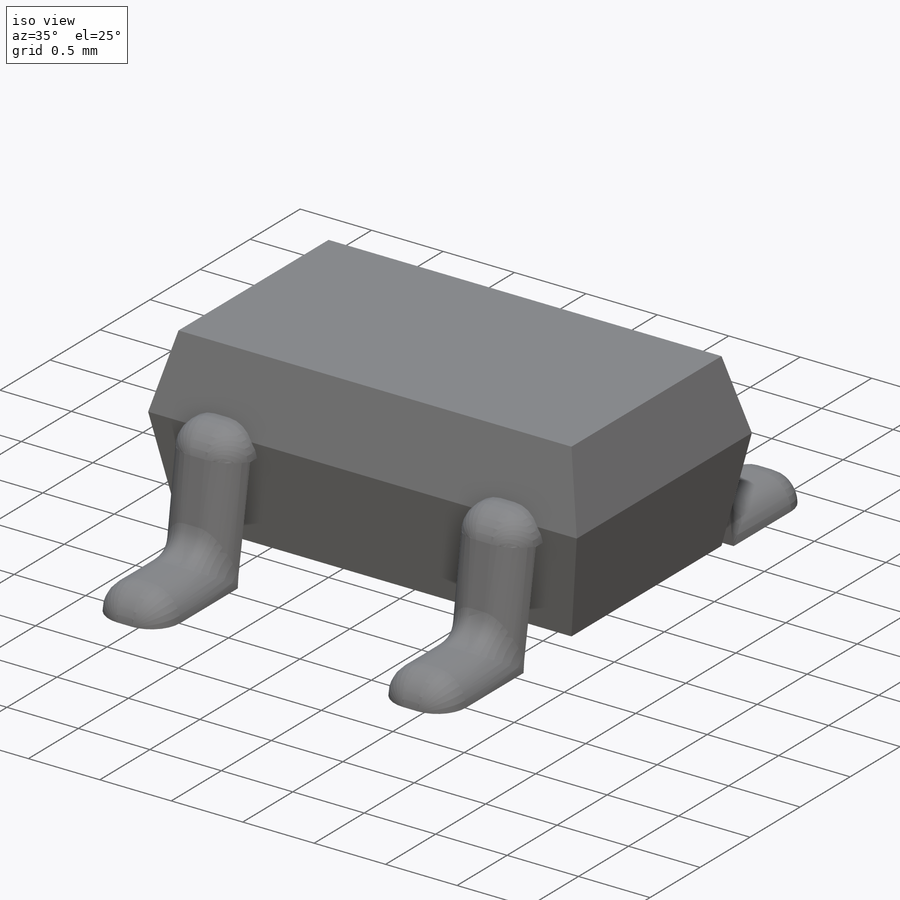
[diagram: iso view]
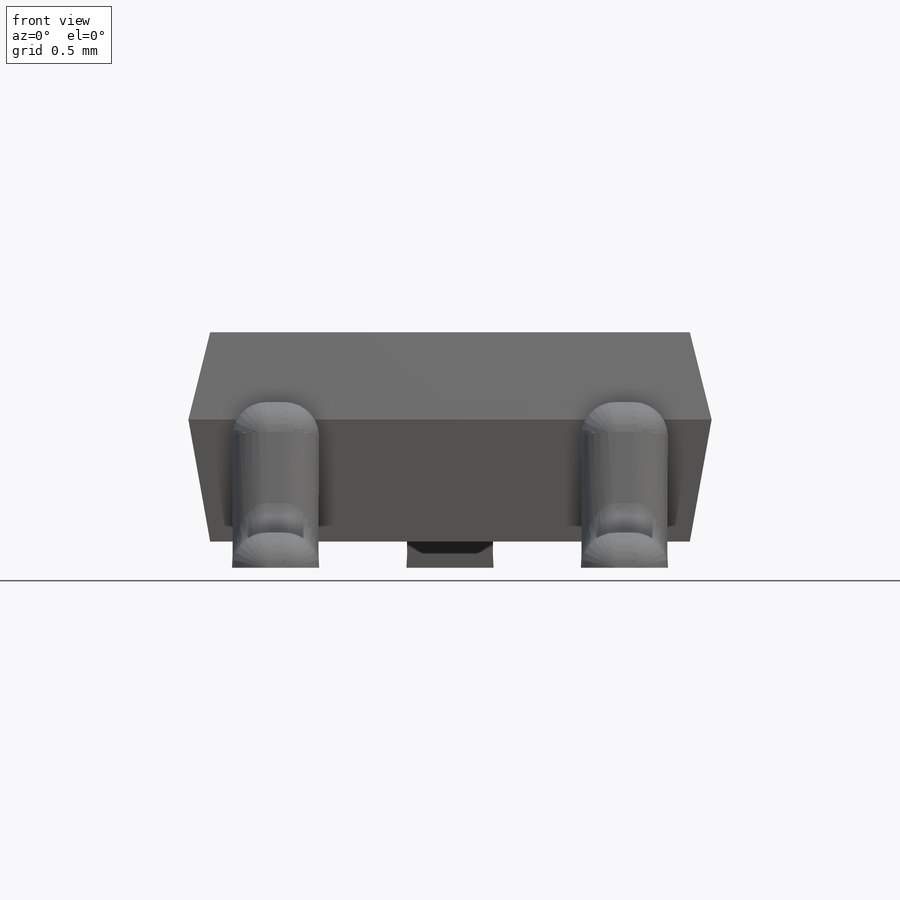
[diagram: front view]
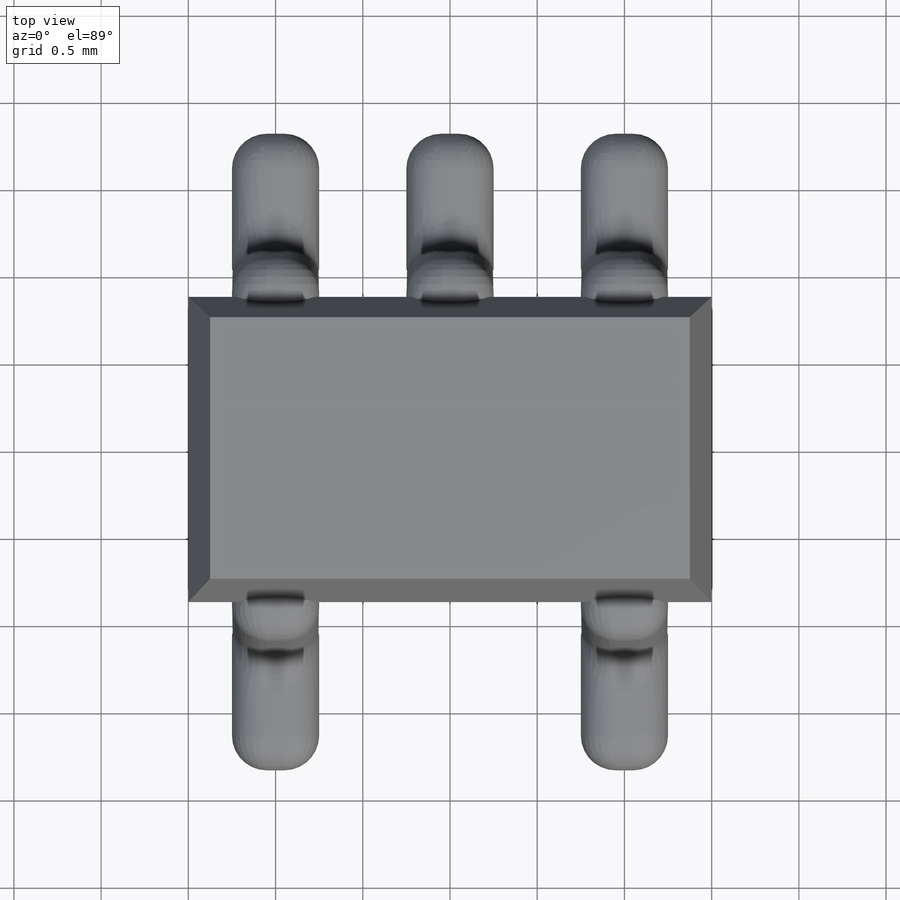
[diagram: top view]
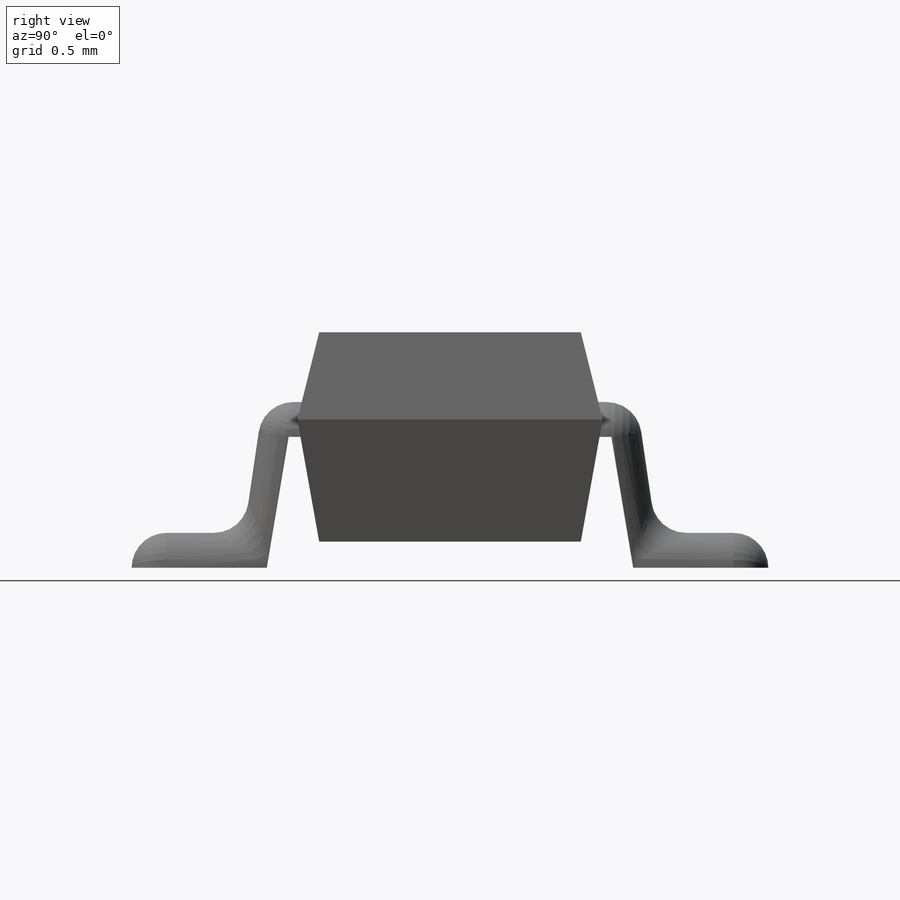
[diagram: right view]
SOLIDWORKS PART (.sldprt)
format: sldprt  version: not decoded by parser v0  size: 799,232 bytes
history: native  units: mm
features: sketch x6, extrude x6, chamfer x5, fillet x5, material x1 (+13 scaffold rows collapsed)
feature tree (36):
  scaffold x13  (default folders/planes/origin — collapsed)
  material  "Material <not specified>"
  sketch  "Sketch1"  dims[D1=3.0mm D2=1.75mm]
  extrude  "Boss-Extrude1"  Depth=0.5mm
  chamfer  "Chamfer1"  Distance=0.5mm
  chamfer  "Chamfer2"  Distance=0.5mm
  sketch  "Sketch2"
  extrude  "Boss-Extrude2"  Depth=0.7mm
  chamfer  "Chamfer3"  Distance=0.7mm
  sketch  "Sketch3"  dims[D1=0.5mm D2=0.25mm D3=0.25mm D4=0.5mm D5=0.25mm]
  extrude  "Boss-Extrude3"  Depth=0.2mm
  fillet  "Fillet1"  Radius=0.2mm
  sketch  "Sketch4"  dims[D1=0.2mm D2=0.2mm D3=0.2mm D4=0.2mm D5=0.2mm]
  extrude  "Boss-Extrude4"  Depth=0.75mm
  sketch  "Sketch5"  dims[D1=0.2mm D2=0.2mm]
  extrude  "Boss-Extrude5"  Depth=0.7mm
  chamfer  "Chamfer4"  Distance=0.75mm
  fillet  "Fillet2"  Radius=0.2mm
  sketch  "Sketch6"  dims[D1=0.2mm D2=0.2mm D3=0.2mm]
  extrude  "Boss-Extrude6"  Depth=0.7mm
  chamfer  "Chamfer5"  Distance=0.75mm
  fillet  "Fillet3"  Radius=0.2mm
  fillet  "Fillet5"  Radius=0.2mm
  fillet  "Fillet6"  Radius=0.2mm
decode coverage: 21 of 22 modeling features carry decoded parameters
note: suppression state not decoded; provenance and decode notes live in map.json
